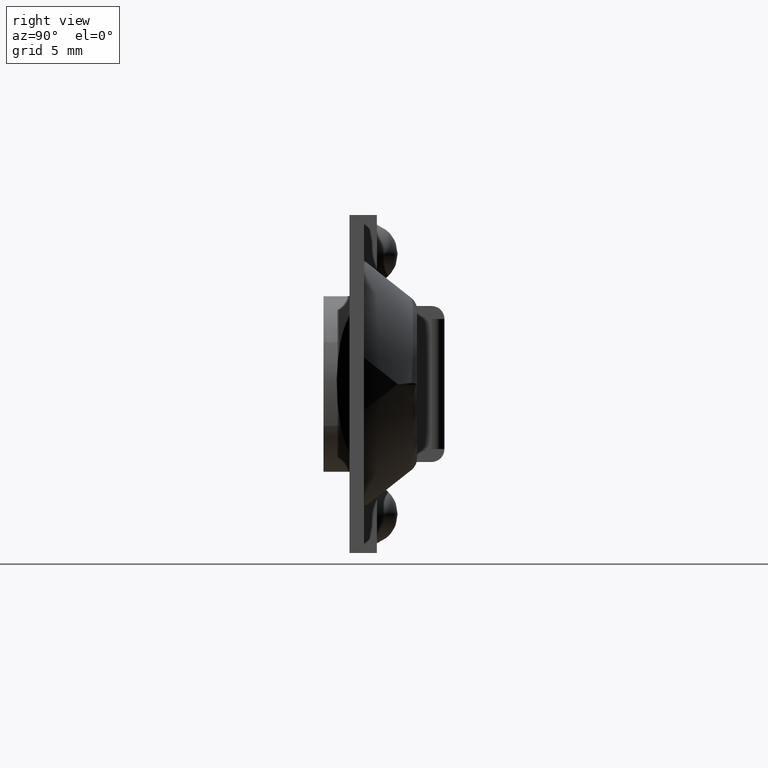
[diagram: clean part render]
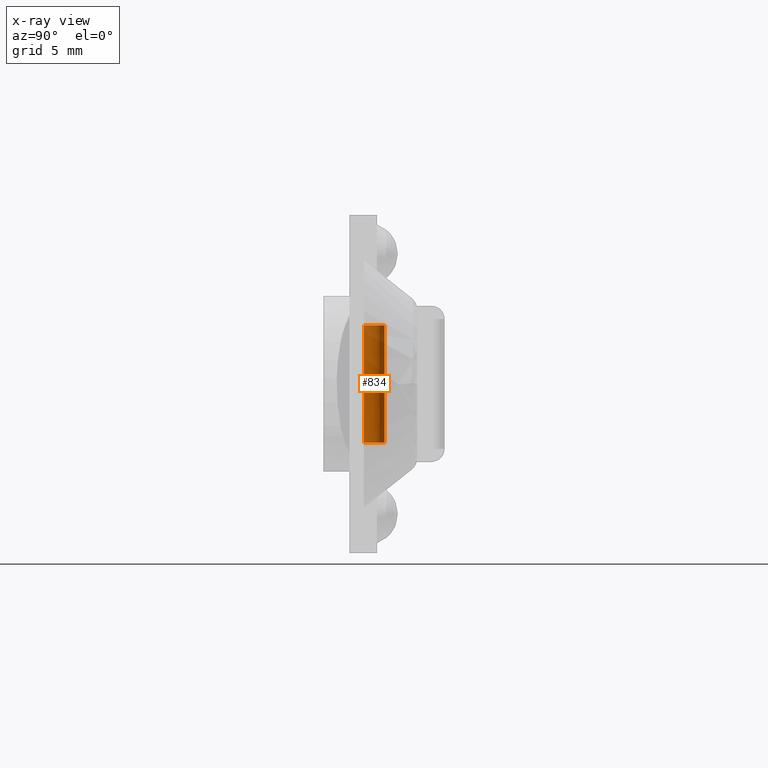
[diagram: x-ray — body ghosted, one internal face saturated and labeled with its STEP entity id]
A machine part, right view, then the same camera in x-ray: the body is ghosted and one INTERNAL B-rep face — a face not visible from any outside direction — is saturated and labeled: STEP entity #834.
In plain terms, the highlighted face is a freeform B-spline surface patch.
Its self-contained STEP definition (entity closure, byte-faithful):
#732=CARTESIAN_POINT('',(-0.094427387725408,2.694407621091064,4.725000000000002));
#733=CARTESIAN_POINT('',(-0.071691782910383,2.697110092359015,4.725000000000002));
#734=CARTESIAN_POINT('',(-0.048838831627886,2.698507838737624,4.725000000000001));
#735=CARTESIAN_POINT('',(0.749669007109618,2.747346670365511,4.725000000000002));
#736=CARTESIAN_POINT('',(0.798507838737504,1.948838831628006,4.725000000000001));
#737=CARTESIAN_POINT('',(0.847346670365391,1.150330992890502,4.725000000000002));
#738=CARTESIAN_POINT('',(0.048838831627886,1.101492161262616,4.725000000000001));
#739=CARTESIAN_POINT('',(-0.094427387725408,2.694407621091064,-4.730625000000003));
#740=CARTESIAN_POINT('',(-0.071691782910383,2.697110092359015,-4.730625000000003));
#741=CARTESIAN_POINT('',(-0.048838831627886,2.698507838737624,-4.730625000000002));
#742=CARTESIAN_POINT('',(0.749669007109618,2.747346670365511,-4.730625000000002));
#743=CARTESIAN_POINT('',(0.798507838737504,1.948838831628006,-4.730625000000002));
#744=CARTESIAN_POINT('',(0.847346670365391,1.150330992890502,-4.730625000000002));
#745=CARTESIAN_POINT('',(0.048838831627886,1.101492161262616,-4.730625000000002));
#753=(BOUNDED_SURFACE()B_SPLINE_SURFACE(2,1,((#732,#739),(#733,#740),(#734,#741),(#735,#742),(#736,#743),(#737,#744),(#738,#745)),.UNSPECIFIED.,.F.,.F.,.U.)B_SPLINE_SURFACE_WITH_KNOTS((3,2,2,3),(2,2),(3.078760800517997,3.141592653589793,4.712388980384690,6.283185307179586),(0.0,9.455625000000005),.UNSPECIFIED.)GEOMETRIC_REPRESENTATION_ITEM()RATIONAL_B_SPLINE_SURFACE(((0.977505800795127,0.977505800795127),(0.988284271247462,0.988284271247462),(1.0,1.0),(0.707106781186548,0.707106781186548),(1.0,1.0),(0.707106781186548,0.707106781186548),(1.0,1.0)))REPRESENTATION_ITEM('')SURFACE());
#754=CARTESIAN_POINT('',(-0.094427387787599,2.694407621083672,-4.500000000000000));
#755=VERTEX_POINT('',#754);
#756=CARTESIAN_POINT('',(0.800000000000011,1.900000000000120,-4.500000000000000));
#757=VERTEX_POINT('',#756);
#758=CARTESIAN_POINT('',(-0.094427387787599,2.694407621083672,-4.500000000000001));
#759=CARTESIAN_POINT('',(-0.047379295784377,2.700000000000131,-4.500000000000000));
#760=CARTESIAN_POINT('',(0.0,2.700000000000131,-4.500000000000000));
#761=CARTESIAN_POINT('',(0.800000000000011,2.700000000000131,-4.500000000000000));
#762=CARTESIAN_POINT('',(0.800000000000011,1.900000000000120,-4.500000000000000));
#770=(BOUNDED_CURVE()B_SPLINE_CURVE(2,(#758,#759,#760,#761,#762),.UNSPECIFIED.,.F.,.U.)B_SPLINE_CURVE_WITH_KNOTS((3,2,3),(0.229562473489183,0.250000000000000,0.500000000000000),.UNSPECIFIED.)CURVE()GEOMETRIC_REPRESENTATION_ITEM()RATIONAL_B_SPLINE_CURVE((0.956026754136021,0.976055948302646,1.0,0.707106781186547,1.0))REPRESENTATION_ITEM(''));
#771=EDGE_CURVE('',#755,#757,#770,.T.);
#772=ORIENTED_EDGE('',*,*,#771,.F.);
#773=CARTESIAN_POINT('',(-0.094427387787599,2.694407621083672,4.500000000000000));
#774=VERTEX_POINT('',#773);
#775=CARTESIAN_POINT('',(-0.094427387787599,2.694407621083672,4.500000000000000));
#776=CARTESIAN_POINT('',(-0.094427387787599,2.694407621083672,-4.500000000000000));
#777=QUASI_UNIFORM_CURVE('',1,(#775,#776),.UNSPECIFIED.,.F.,.U.);
#778=EDGE_CURVE('',#774,#755,#777,.T.);
#779=ORIENTED_EDGE('',*,*,#778,.F.);
#780=CARTESIAN_POINT('',(0.800000000000011,1.900000000000120,4.500000000000000));
#781=VERTEX_POINT('',#780);
#782=CARTESIAN_POINT('',(-0.094427387787599,2.694407621083672,4.500000000000000));
#783=CARTESIAN_POINT('',(-0.047379295784377,2.700000000000131,4.500000000000001));
#784=CARTESIAN_POINT('',(0.0,2.700000000000131,4.500000000000000));
#785=CARTESIAN_POINT('',(0.800000000000011,2.700000000000131,4.500000000000000));
#786=CARTESIAN_POINT('',(0.800000000000011,1.900000000000120,4.500000000000000));
#794=(BOUNDED_CURVE()B_SPLINE_CURVE(2,(#782,#783,#784,#785,#786),.UNSPECIFIED.,.F.,.U.)B_SPLINE_CURVE_WITH_KNOTS((3,2,3),(0.229562473489183,0.250000000000000,0.500000000000000),.UNSPECIFIED.)CURVE()GEOMETRIC_REPRESENTATION_ITEM()RATIONAL_B_SPLINE_CURVE((0.956026754136021,0.976055948302646,1.0,0.707106781186547,1.0))REPRESENTATION_ITEM(''));
#795=EDGE_CURVE('',#774,#781,#794,.T.);
#796=ORIENTED_EDGE('',*,*,#795,.T.);
#797=CARTESIAN_POINT('',(0.048838831725334,1.101492161268576,4.500000000000000));
#798=VERTEX_POINT('',#797);
#799=CARTESIAN_POINT('',(0.800000000000011,1.900000000000120,4.500000000000000));
#800=CARTESIAN_POINT('',(0.800000000000011,1.147435146659579,4.500000000000001));
#801=CARTESIAN_POINT('',(0.048838831725334,1.101492161268576,4.500000000000001));
#809=(BOUNDED_CURVE()B_SPLINE_CURVE(2,(#799,#800,#801),.UNSPECIFIED.,.F.,.U.)B_SPLINE_CURVE_WITH_KNOTS((3,3),(0.500000000000000,0.739332962199854),.UNSPECIFIED.)CURVE()GEOMETRIC_REPRESENTATION_ITEM()RATIONAL_B_SPLINE_CURVE((1.0,0.719603993332505,0.976072041582943))REPRESENTATION_ITEM(''));
#810=EDGE_CURVE('',#781,#798,#809,.T.);
#811=ORIENTED_EDGE('',*,*,#810,.T.);
#812=CARTESIAN_POINT('',(0.048838831725334,1.101492161268576,-4.500000000000000));
#813=VERTEX_POINT('',#812);
#814=CARTESIAN_POINT('',(0.048838831725334,1.101492161268576,4.500000000000000));
#815=CARTESIAN_POINT('',(0.048838831725334,1.101492161268576,-4.500000000000000));
#816=QUASI_UNIFORM_CURVE('',1,(#814,#815),.UNSPECIFIED.,.F.,.U.);
#817=EDGE_CURVE('',#798,#813,#816,.T.);
#818=ORIENTED_EDGE('',*,*,#817,.T.);
#819=CARTESIAN_POINT('',(0.800000000000011,1.900000000000120,-4.500000000000000));
#820=CARTESIAN_POINT('',(0.800000000000011,1.147435146659579,-4.500000000000001));
#821=CARTESIAN_POINT('',(0.048838831725334,1.101492161268576,-4.500000000000001));
#829=(BOUNDED_CURVE()B_SPLINE_CURVE(2,(#819,#820,#821),.UNSPECIFIED.,.F.,.U.)B_SPLINE_CURVE_WITH_KNOTS((3,3),(0.500000000000000,0.739332962199854),.UNSPECIFIED.)CURVE()GEOMETRIC_REPRESENTATION_ITEM()RATIONAL_B_SPLINE_CURVE((1.0,0.719603993332505,0.976072041582943))REPRESENTATION_ITEM(''));
#830=EDGE_CURVE('',#757,#813,#829,.T.);
#831=ORIENTED_EDGE('',*,*,#830,.F.);
#832=EDGE_LOOP('',(#772,#779,#796,#811,#818,#831));
#833=FACE_OUTER_BOUND('',#832,.T.);
#834=ADVANCED_FACE('',(#833),#753,.T.);